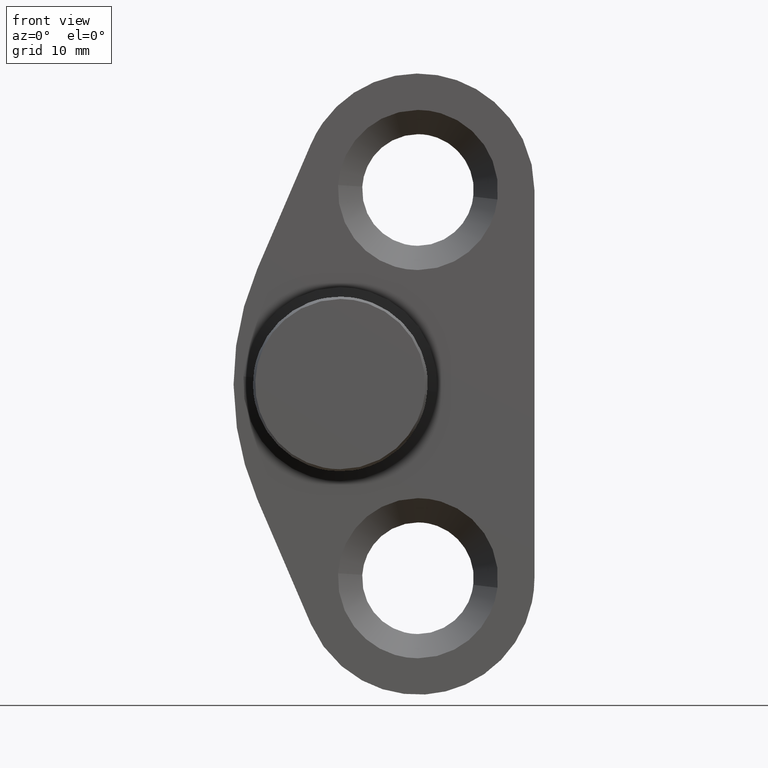
[diagram: clean part render]
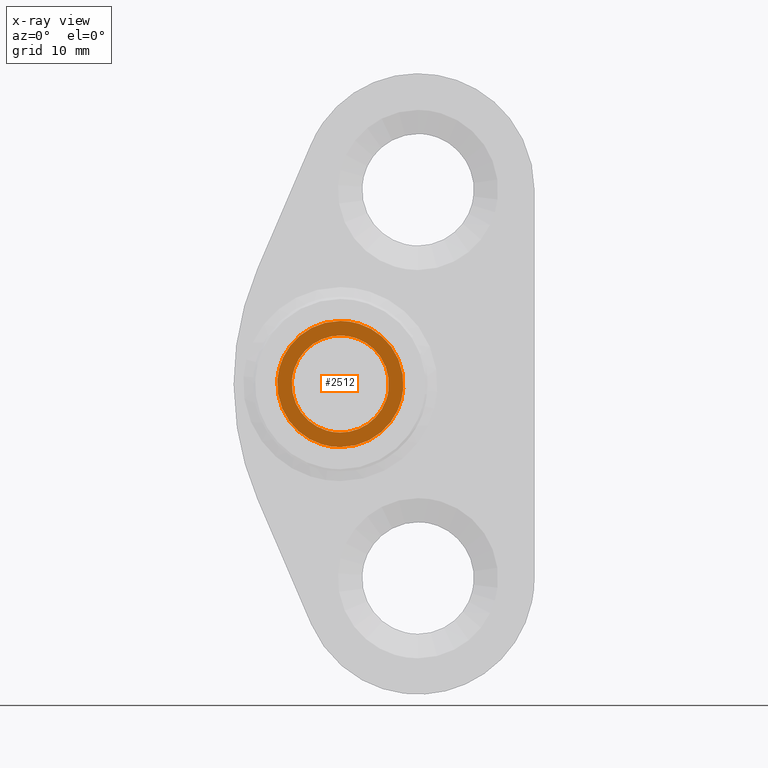
[diagram: x-ray — body ghosted, one internal face saturated and labeled with its STEP entity id]
A machine part, front view, then the same camera in x-ray: the body is ghosted and one INTERNAL B-rep face — a face not visible from any outside direction — is saturated and labeled: STEP entity #2512.
In plain terms, the highlighted face is a freeform B-spline surface patch.
Its self-contained STEP definition (entity closure, byte-faithful):
#1494=CARTESIAN_POINT('',(4.965047631806767,19.0,-0.590171173381082));
#1495=VERTEX_POINT('',#1494);
#1501=CARTESIAN_POINT('',(0.0,19.0,5.0));
#1502=VERTEX_POINT('',#1501);
#1503=CARTESIAN_POINT('',(4.965047631806767,19.000000000000004,-0.590171173381082));
#1504=CARTESIAN_POINT('',(4.999999999999999,19.0,-0.296120598357869));
#1505=CARTESIAN_POINT('',(5.0,19.0,-2.965939E-016));
#1506=CARTESIAN_POINT('',(5.000000000000001,18.999999999999993,5.000000000000001));
#1507=CARTESIAN_POINT('',(0.0,19.0,5.0));
#1515=(BOUNDED_CURVE()B_SPLINE_CURVE(2,(#1503,#1504,#1505,#1506,#1507),.UNSPECIFIED.,.F.,.U.)B_SPLINE_CURVE_WITH_KNOTS((3,2,3),(0.229562473509021,0.250000000000000,0.500000000000000),.UNSPECIFIED.)CURVE()GEOMETRIC_REPRESENTATION_ITEM()RATIONAL_B_SPLINE_CURVE((0.956026754174904,0.976055948325888,1.0,0.707106781186548,1.0))REPRESENTATION_ITEM(''));
#1516=EDGE_CURVE('',#1495,#1502,#1515,.T.);
#1518=CARTESIAN_POINT('',(-4.990673992102233,19.0,0.305242697790388));
#1519=VERTEX_POINT('',#1518);
#1520=CARTESIAN_POINT('',(0.0,19.0,5.0));
#1521=CARTESIAN_POINT('',(-4.703530334309224,18.999999999999993,4.999999999999999));
#1522=CARTESIAN_POINT('',(-4.990673992102233,18.999999999999996,0.305242697790388));
#1530=(BOUNDED_CURVE()B_SPLINE_CURVE(2,(#1520,#1521,#1522),.UNSPECIFIED.,.F.,.U.)B_SPLINE_CURVE_WITH_KNOTS((3,3),(0.500000000000000,0.739332962233940),.UNSPECIFIED.)CURVE()GEOMETRIC_REPRESENTATION_ITEM()RATIONAL_B_SPLINE_CURVE((1.0,0.719603993292571,0.976072041655996))REPRESENTATION_ITEM(''));
#1531=EDGE_CURVE('',#1502,#1519,#1530,.T.);
#1605=CARTESIAN_POINT('',(0.0,19.0,-5.0));
#1606=VERTEX_POINT('',#1605);
#1607=CARTESIAN_POINT('',(-4.990673992102233,19.000000000000004,0.305242697790388));
#1608=CARTESIAN_POINT('',(-5.0,19.000000000000004,0.152763816609374));
#1609=CARTESIAN_POINT('',(-5.0,19.0,-2.965939E-016));
#1610=CARTESIAN_POINT('',(-5.000000000000001,18.999999999999993,-5.000000000000001));
#1611=CARTESIAN_POINT('',(0.0,19.0,-5.0));
#1619=(BOUNDED_CURVE()B_SPLINE_CURVE(2,(#1607,#1608,#1609,#1610,#1611),.UNSPECIFIED.,.F.,.U.)B_SPLINE_CURVE_WITH_KNOTS((3,2,3),(0.739332962233940,0.750000000000000,1.0),.UNSPECIFIED.)CURVE()GEOMETRIC_REPRESENTATION_ITEM()RATIONAL_B_SPLINE_CURVE((0.976072041655995,0.987502787893976,1.0,0.707106781186548,1.0))REPRESENTATION_ITEM(''));
#1620=EDGE_CURVE('',#1519,#1606,#1619,.T.);
#1622=CARTESIAN_POINT('',(0.0,19.0,-5.0));
#1623=CARTESIAN_POINT('',(4.440872629581579,18.999999999999996,-4.999999999999998));
#1624=CARTESIAN_POINT('',(4.965047631806767,19.0,-0.590171173381082));
#1632=(BOUNDED_CURVE()B_SPLINE_CURVE(2,(#1622,#1623,#1624),.UNSPECIFIED.,.F.,.U.)B_SPLINE_CURVE_WITH_KNOTS((3,3),(0.0,0.229562473509021),.UNSPECIFIED.)CURVE()GEOMETRIC_REPRESENTATION_ITEM()RATIONAL_B_SPLINE_CURVE((1.0,0.731050832860660,0.956026754174904))REPRESENTATION_ITEM(''));
#1633=EDGE_CURVE('',#1606,#1495,#1632,.T.);
#1657=CARTESIAN_POINT('',(0.0,19.0,-6.499999999999920));
#1658=VERTEX_POINT('',#1657);
#1659=CARTESIAN_POINT('',(6.479962669292402,19.000000000033989,-0.509984122644578));
#1660=VERTEX_POINT('',#1659);
#1661=CARTESIAN_POINT('',(0.0,19.0,-6.499999999999920));
#1662=CARTESIAN_POINT('',(6.008538195017582,18.999999999999993,-6.499999999999919));
#1663=CARTESIAN_POINT('',(6.479962669292402,19.000000000033982,-0.509984122644578));
#1671=(BOUNDED_CURVE()B_SPLINE_CURVE(2,(#1661,#1662,#1663),.UNSPECIFIED.,.F.,.U.)B_SPLINE_CURVE_WITH_KNOTS((3,3),(0.0,0.236331300611131),.UNSPECIFIED.)CURVE()GEOMETRIC_REPRESENTATION_ITEM()RATIONAL_B_SPLINE_CURVE((1.0,0.723120658630545,0.969723356126663))REPRESENTATION_ITEM(''));
#1672=EDGE_CURVE('',#1658,#1660,#1671,.T.);
#1674=CARTESIAN_POINT('',(-6.479962669292402,19.000000000033989,0.509984122644578));
#1675=VERTEX_POINT('',#1674);
#1676=CARTESIAN_POINT('',(-6.479962669292402,19.000000000033989,0.509984122644578));
#1677=CARTESIAN_POINT('',(-6.499999999999922,19.000000000000004,0.255385695960667));
#1678=CARTESIAN_POINT('',(-6.499999999999920,19.0,-2.965939E-016));
#1679=CARTESIAN_POINT('',(-6.499999999999920,18.999999999999996,-6.499999999999920));
#1680=CARTESIAN_POINT('',(0.0,19.0,-6.499999999999920));
#1688=(BOUNDED_CURVE()B_SPLINE_CURVE(2,(#1676,#1677,#1678,#1679,#1680),.UNSPECIFIED.,.F.,.U.)B_SPLINE_CURVE_WITH_KNOTS((3,2,3),(0.736331300611131,0.750000000000000,1.0),.UNSPECIFIED.)CURVE()GEOMETRIC_REPRESENTATION_ITEM()RATIONAL_B_SPLINE_CURVE((0.969723356126664,0.983986122556003,1.0,0.707106781186547,1.0))REPRESENTATION_ITEM(''));
#1689=EDGE_CURVE('',#1675,#1658,#1688,.T.);
#1756=CARTESIAN_POINT('',(0.0,19.0,6.499999999999920));
#1757=VERTEX_POINT('',#1756);
#1758=CARTESIAN_POINT('',(6.479962669292402,19.000000000033989,-0.509984122644578));
#1759=CARTESIAN_POINT('',(6.499999999999922,19.000000000000004,-0.255385695960668));
#1760=CARTESIAN_POINT('',(6.499999999999920,19.0,-2.965939E-016));
#1761=CARTESIAN_POINT('',(6.499999999999920,18.999999999999996,6.499999999999920));
#1762=CARTESIAN_POINT('',(0.0,19.0,6.499999999999920));
#1770=(BOUNDED_CURVE()B_SPLINE_CURVE(2,(#1758,#1759,#1760,#1761,#1762),.UNSPECIFIED.,.F.,.U.)B_SPLINE_CURVE_WITH_KNOTS((3,2,3),(0.236331300611131,0.250000000000000,0.500000000000000),.UNSPECIFIED.)CURVE()GEOMETRIC_REPRESENTATION_ITEM()RATIONAL_B_SPLINE_CURVE((0.969723356126664,0.983986122556003,1.0,0.707106781186547,1.0))REPRESENTATION_ITEM(''));
#1771=EDGE_CURVE('',#1660,#1757,#1770,.T.);
#1805=CARTESIAN_POINT('',(0.0,19.0,6.499999999999920));
#1806=CARTESIAN_POINT('',(-6.008538195017620,19.0,6.499999999999920));
#1807=CARTESIAN_POINT('',(-6.479962669292402,19.000000000033982,0.509984122644578));
#1815=(BOUNDED_CURVE()B_SPLINE_CURVE(2,(#1805,#1806,#1807),.UNSPECIFIED.,.F.,.U.)B_SPLINE_CURVE_WITH_KNOTS((3,3),(0.500000000000000,0.736331300611132),.UNSPECIFIED.)CURVE()GEOMETRIC_REPRESENTATION_ITEM()RATIONAL_B_SPLINE_CURVE((1.0,0.723120658630543,0.969723356126666))REPRESENTATION_ITEM(''));
#1816=EDGE_CURVE('',#1757,#1675,#1815,.T.);
#2495=CARTESIAN_POINT('',(-7.147365892724324,19.0,-7.149349974803390));
#2496=CARTESIAN_POINT('',(-7.147365892724324,19.0,7.149350323490562));
#2497=CARTESIAN_POINT('',(7.147366241411494,19.0,-7.149349974803389));
#2498=CARTESIAN_POINT('',(7.147366241411494,19.0,7.149350323490562));
#2499=B_SPLINE_SURFACE_WITH_KNOTS('',1,1,((#2495,#2497),(#2496,#2498)),.UNSPECIFIED.,.F.,.F.,.U.,(2,2),(2,2),(0.0,14.298700298293950),(0.0,14.294732134135820),.UNSPECIFIED.);
#2500=ORIENTED_EDGE('',*,*,#1672,.T.);
#2501=ORIENTED_EDGE('',*,*,#1771,.T.);
#2502=ORIENTED_EDGE('',*,*,#1816,.T.);
#2503=ORIENTED_EDGE('',*,*,#1689,.T.);
#2504=EDGE_LOOP('',(#2500,#2501,#2502,#2503));
#2505=FACE_OUTER_BOUND('',#2504,.T.);
#2506=ORIENTED_EDGE('',*,*,#1531,.F.);
#2507=ORIENTED_EDGE('',*,*,#1516,.F.);
#2508=ORIENTED_EDGE('',*,*,#1633,.F.);
#2509=ORIENTED_EDGE('',*,*,#1620,.F.);
#2510=EDGE_LOOP('',(#2506,#2507,#2508,#2509));
#2511=FACE_BOUND('',#2510,.T.);
#2512=ADVANCED_FACE('',(#2505,#2511),#2499,.F.);